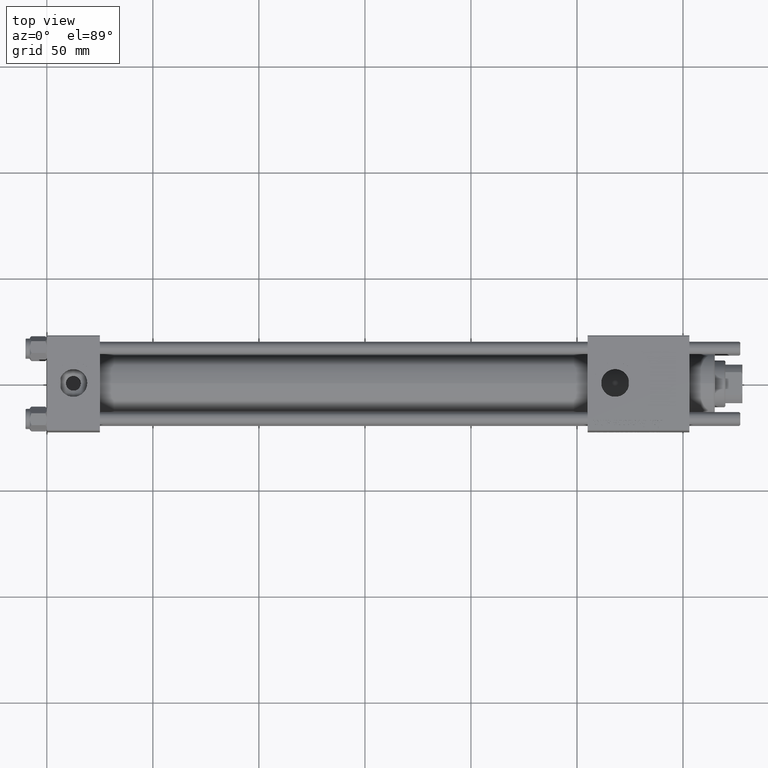
[diagram: clean part render]
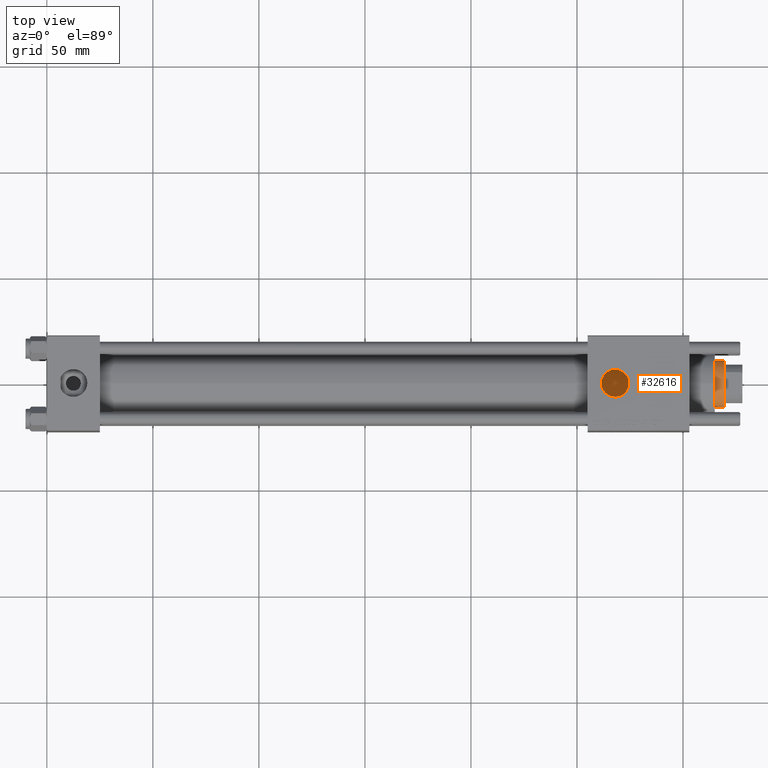
[diagram: same view with one face highlighted and labeled with its STEP entity id]
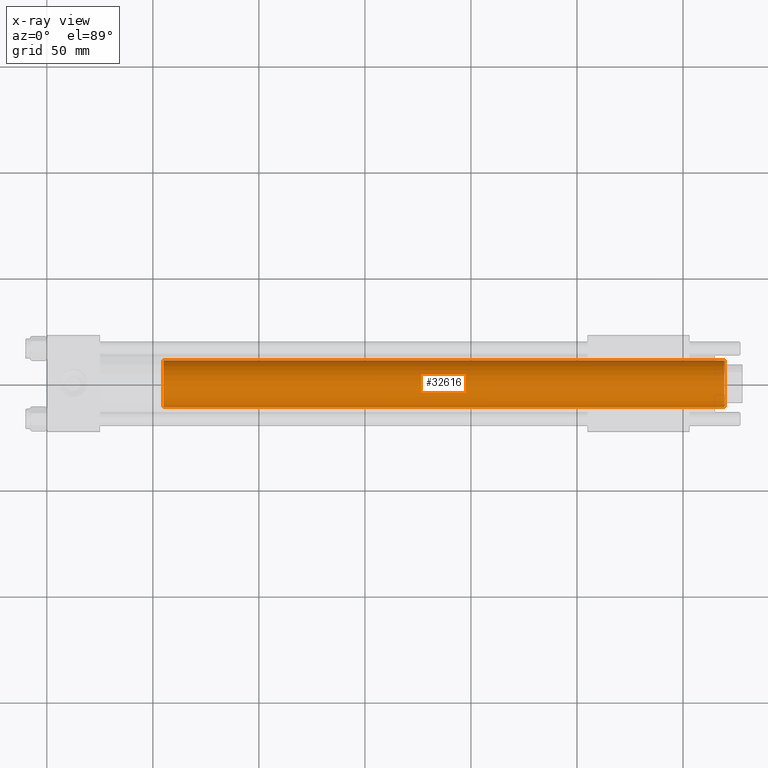
[diagram: x-ray of the same camera — body ghosted, the highlighted face saturated]
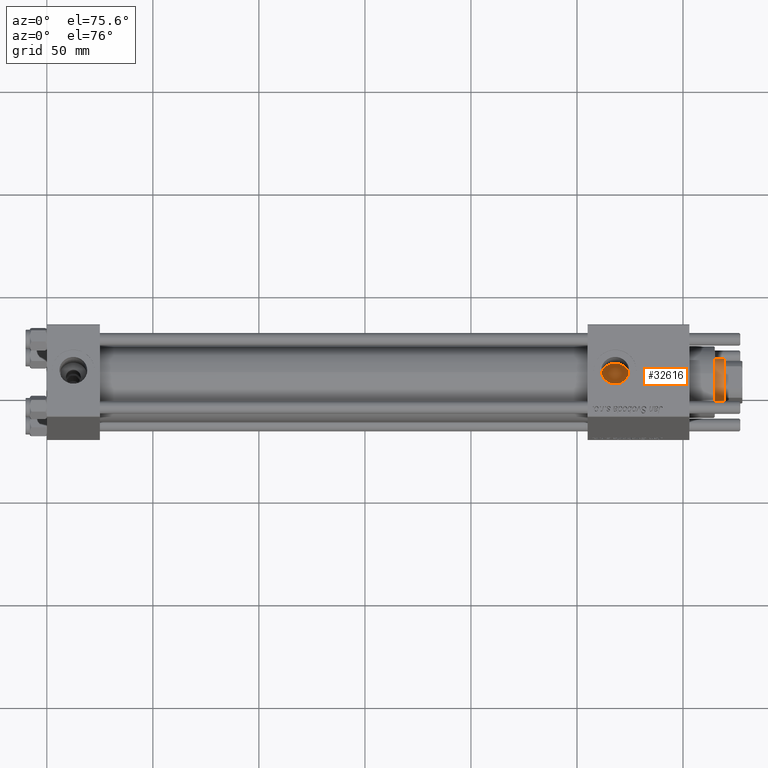
[diagram: same view with one face highlighted and labeled with its STEP entity id]
A machine part, top view. The second image highlights one B-rep face of the part: STEP entity #32616.
The next image is the same camera in x-ray: the body ghosted, the highlighted face saturated — about 0% of this face is hidden behind the body in this view.
A second angle (auxiliary view) of the same face is appended — the face is thin or edge-on in the first view.
In plain terms, the highlighted cylindrical surface (edge-blend (fillet) strip) has radius 11 mm, axis along (-1, 0, 0).
Its self-contained STEP definition (entity closure, byte-faithful):
#198 = CIRCLE ( 'NONE', #55431, 11.00000000000000000 ) ;
#4757 = CARTESIAN_POINT ( 'NONE',  ( 11.00000000000000000, 1.347111479062088405E-15, 295.0000000000000568 ) ) ;
#5040 = AXIS2_PLACEMENT_3D ( 'NONE', #29272, #29561, #34704 ) ;
#8366 = DIRECTION ( 'NONE',  ( 1.000000000000000000, 0.000000000000000000, 0.000000000000000000 ) ) ;
#8957 = ORIENTED_EDGE ( 'NONE', *, *, #56730, .F. ) ;
#13215 = EDGE_CURVE ( 'NONE', #44417, #47067, #40847, .T. ) ;
#14686 = LINE ( 'NONE', #24980, #30833 ) ;
#14816 = EDGE_CURVE ( 'NONE', #45702, #28076, #198, .T. ) ;
#15433 = CARTESIAN_POINT ( 'NONE',  ( -11.00000000000000000, 0.000000000000000000, 294.5000000000001137 ) ) ;
#17514 = DIRECTION ( 'NONE',  ( -0.000000000000000000, -0.000000000000000000, -1.000000000000000000 ) ) ;
#19299 = CARTESIAN_POINT ( 'NONE',  ( 11.00000000000000000, 1.347111479062088405E-15, 30.00000000000000000 ) ) ;
#20332 = EDGE_LOOP ( 'NONE', ( #8957, #24773, #33104, #54261 ) ) ;
#22031 = CARTESIAN_POINT ( 'NONE',  ( 0.000000000000000000, 0.000000000000000000, 30.00000000000000000 ) ) ;
#23607 = FACE_OUTER_BOUND ( 'NONE', #20332, .T. ) ;
#24773 = ORIENTED_EDGE ( 'NONE', *, *, #13215, .T. ) ;
#24980 = CARTESIAN_POINT ( 'NONE',  ( -11.00000000000000000, 0.000000000000000000, 295.0000000000000568 ) ) ;
#28076 = VERTEX_POINT ( 'NONE', #19299 ) ;
#29272 = CARTESIAN_POINT ( 'NONE',  ( 0.000000000000000000, 0.000000000000000000, 294.5000000000001137 ) ) ;
#29561 = DIRECTION ( 'NONE',  ( 0.000000000000000000, 0.000000000000000000, -1.000000000000000000 ) ) ;
#30833 = VECTOR ( 'NONE', #47726, 1000.000000000000000 ) ;
#32616 = ADVANCED_FACE ( 'NONE', ( #23607 ), #56353, .T. ) ;
#33104 = ORIENTED_EDGE ( 'NONE', *, *, #37635, .T. ) ;
#34704 = DIRECTION ( 'NONE',  ( 1.000000000000000000, 0.000000000000000000, 0.000000000000000000 ) ) ;
#36963 = CARTESIAN_POINT ( 'NONE',  ( 0.000000000000000000, 0.000000000000000000, 295.0000000000000568 ) ) ;
#37635 = EDGE_CURVE ( 'NONE', #47067, #45702, #14686, .T. ) ;
#40776 = CARTESIAN_POINT ( 'NONE',  ( -11.00000000000000000, 0.000000000000000000, 30.00000000000000000 ) ) ;
#40847 = CIRCLE ( 'NONE', #5040, 11.00000000000000000 ) ;
#42098 = DIRECTION ( 'NONE',  ( -0.000000000000000000, -0.000000000000000000, -1.000000000000000000 ) ) ;
#44417 = VERTEX_POINT ( 'NONE', #52298 ) ;
#45073 = DIRECTION ( 'NONE',  ( 0.000000000000000000, 0.000000000000000000, 1.000000000000000000 ) ) ;
#45702 = VERTEX_POINT ( 'NONE', #40776 ) ;
#47067 = VERTEX_POINT ( 'NONE', #15433 ) ;
#47726 = DIRECTION ( 'NONE',  ( -0.000000000000000000, -0.000000000000000000, -1.000000000000000000 ) ) ;
#49382 = VECTOR ( 'NONE', #17514, 1000.000000000000000 ) ;
#51499 = DIRECTION ( 'NONE',  ( -1.000000000000000000, 0.000000000000000000, 0.000000000000000000 ) ) ;
#52298 = CARTESIAN_POINT ( 'NONE',  ( 11.00000000000000000, 1.347111479062088405E-15, 294.5000000000001137 ) ) ;
#53899 = AXIS2_PLACEMENT_3D ( 'NONE', #36963, #42098, #51499 ) ;
#54261 = ORIENTED_EDGE ( 'NONE', *, *, #14816, .T. ) ;
#55431 = AXIS2_PLACEMENT_3D ( 'NONE', #22031, #45073, #8366 ) ;
#56353 = CYLINDRICAL_SURFACE ( 'NONE', #53899, 11.00000000000000000 ) ;
#56730 = EDGE_CURVE ( 'NONE', #44417, #28076, #59957, .T. ) ;
#59957 = LINE ( 'NONE', #4757, #49382 ) ;